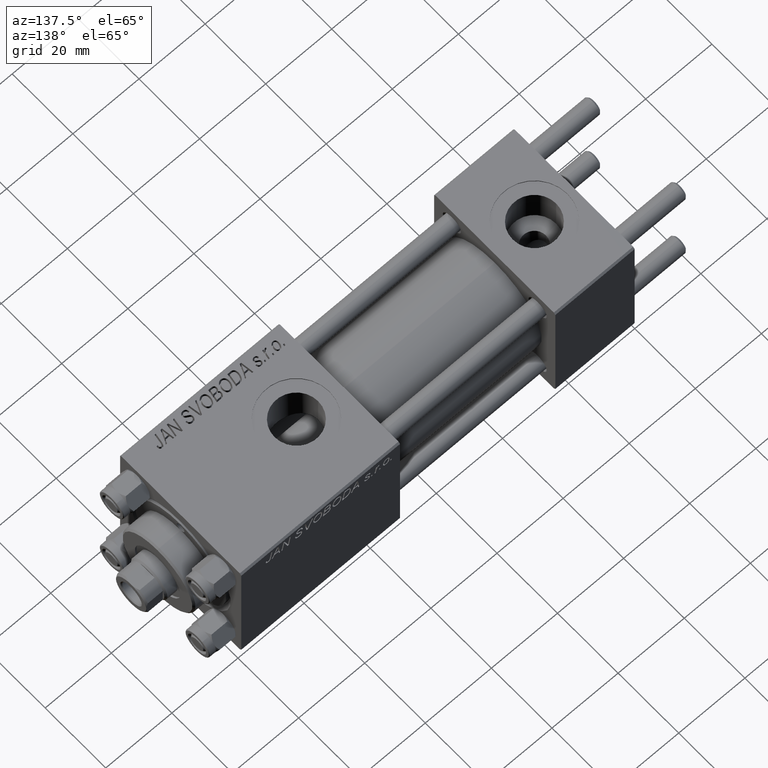
[diagram: clean part render]
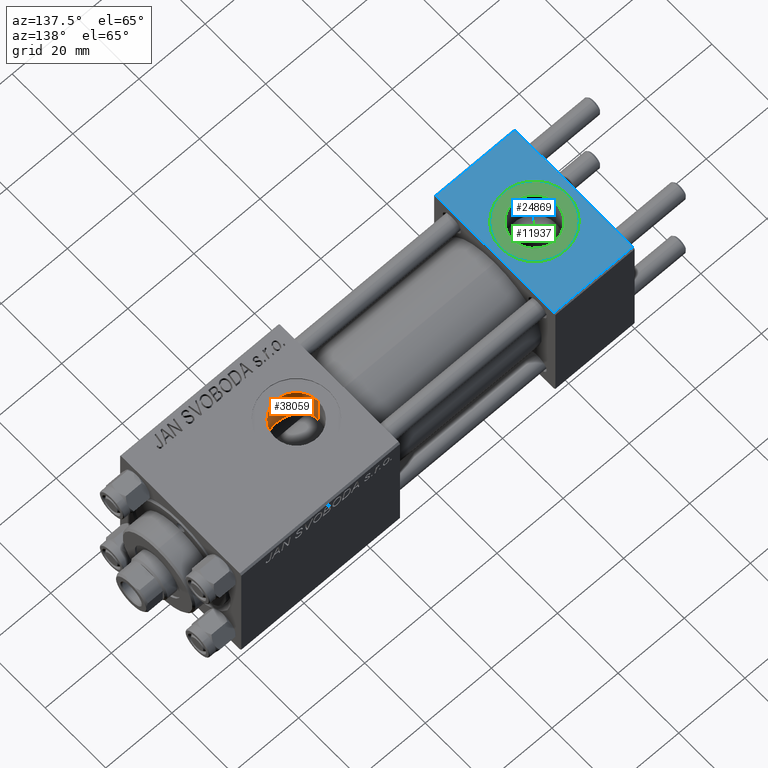
[diagram: same view with three faces highlighted in distinct colors, each labeled with its STEP entity id]
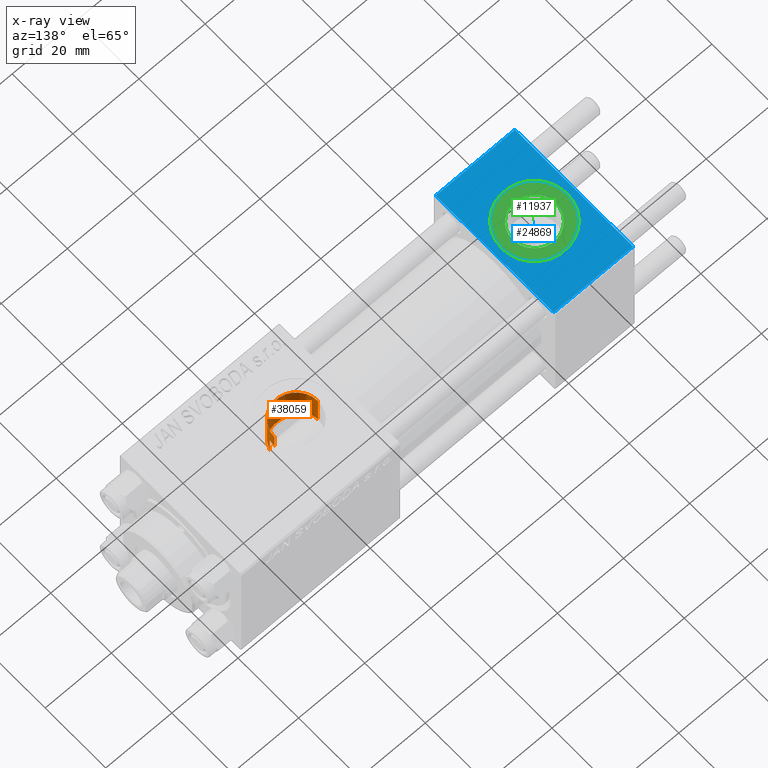
[diagram: x-ray of the same camera — body ghosted, the three highlighted faces saturated]
A machine part, auxiliary view with three faces highlighted in distinct colors.
The next image is the same camera in x-ray (body ghosted, the three faces saturated) — at least one of them is partly hidden behind the body in this view.
Their STEP definitions:

[orange] entity #38059 — the highlighted cylindrical surface (edge-blend (fillet) strip) has radius 6.58 mm, axis along (0, 0, -1).
#166 = CARTESIAN_POINT ( 'NONE',  ( 90.18384735178129574, -2.284382302762963501, 9.743491762341799145 ) ) ;
#417 = CARTESIAN_POINT ( 'NONE',  ( 83.23563096081821300, -6.538530929802691460, 7.566314066596407706 ) ) ;
#2103 = DIRECTION ( 'NONE',  ( 1.000000000000000000, 0.000000000000000000, 0.000000000000000000 ) ) ;
#3079 = CARTESIAN_POINT ( 'NONE',  ( 90.46247493449395449, -1.278752734038846484, 14.94875937294843737 ) ) ;
#3444 = CARTESIAN_POINT ( 'NONE',  ( 84.65744280686338641, -6.559709605006789346, 7.547889352008899877 ) ) ;
#3934 = ORIENTED_EDGE ( 'NONE', *, *, #20905, .T. ) ;
#3945 = CARTESIAN_POINT ( 'NONE',  ( 80.16020215073048405, -5.356874842517142632, 8.448716332623810388 ) ) ;
#4202 = CARTESIAN_POINT ( 'NONE',  ( 81.15150766959031614, -5.943877247083126925, 8.044991576418468071 ) ) ;
#4238 = ORIENTED_EDGE ( 'NONE', *, *, #42522, .F. ) ;
#4458 = CARTESIAN_POINT ( 'NONE',  ( 84.04743762832036680, -6.582974628388996940, 7.527585999843090292 ) ) ;
#5431 = DIRECTION ( 'NONE',  ( 0.000000000000000000, 0.000000000000000000, -1.000000000000000000 ) ) ;
#6328 = ORIENTED_EDGE ( 'NONE', *, *, #49383, .T. ) ;
#6631 = CARTESIAN_POINT ( 'NONE',  ( 90.39284622331669539, -1.591040247564623700, 14.91861279833453757 ) ) ;
#7231 = CARTESIAN_POINT ( 'NONE',  ( 85.64143006621837628, -6.375121249720390182, 7.704616833470068649 ) ) ;
#7484 = CARTESIAN_POINT ( 'NONE',  ( 78.46622740148208663, -3.565203004854784474, 9.344512687240586146 ) ) ;
#7732 = CARTESIAN_POINT ( 'NONE',  ( 79.57031396582577543, -4.880372653833860319, 8.732632965334568453 ) ) ;
#7985 = CARTESIAN_POINT ( 'NONE',  ( 87.26053252520590320, -5.728070196491263921, 8.200680661955367157 ) ) ;
#8203 = VERTEX_POINT ( 'NONE', #25708 ) ;
#8243 = CARTESIAN_POINT ( 'NONE',  ( 79.29730408322323854, -4.618177244596259889, 8.875509752877485781 ) ) ;
#8993 = B_SPLINE_CURVE_WITH_KNOTS ( 'NONE', 3,
 ( #36229, #45276, #25585, #3079, #6631, #17755 ),
 .UNSPECIFIED., .F., .F.,
 ( 4, 2, 4 ),
 ( 0.001923267627926015643, 0.002881828648815649985, 0.003840389669705283893 ),
 .UNSPECIFIED. ) ;
#9360 = VERTEX_POINT ( 'NONE', #39178 ) ;
#9838 = VERTEX_POINT ( 'NONE', #18540 ) ;
#11028 = CARTESIAN_POINT ( 'NONE',  ( 86.92434068310684836, -5.907044672534588869, 8.071096920454994716 ) ) ;
#11281 = CARTESIAN_POINT ( 'NONE',  ( 89.68316260257665817, -3.338928794743214468, 9.433056230293079381 ) ) ;
#11434 = LINE ( 'NONE', #22553, #22635 ) ;
#11778 = CARTESIAN_POINT ( 'NONE',  ( 83.84132420776212768, -6.581215419008478840, 7.529131557805247787 ) ) ;
#12036 = CARTESIAN_POINT ( 'NONE',  ( 77.78468472322818172, -2.169203254887546617, 9.763745855050723677 ) ) ;
#12201 = FACE_OUTER_BOUND ( 'NONE', #23000, .T. ) ;
#14816 = CARTESIAN_POINT ( 'NONE',  ( 77.99714712711040931, -2.723766581249583485, 9.629423614267258458 ) ) ;
#14858 = ORIENTED_EDGE ( 'NONE', *, *, #23069, .F. ) ;
#15825 = CARTESIAN_POINT ( 'NONE',  ( 88.34134544482054707, -4.948221379670047604, 8.691185487698470880 ) ) ;
#16817 = CARTESIAN_POINT ( 'NONE',  ( 77.41999999999846693, 1.225496641077837722E-15, 9.999999999999998224 ) ) ;
#17015 = DIRECTION ( 'NONE',  ( -0.000000000000000000, -0.000000000000000000, -1.000000000000000000 ) ) ;
#17755 = CARTESIAN_POINT ( 'NONE',  ( 90.30000000000001137, -1.899052395280420136, 14.87930105885285670 ) ) ;
#17783 = LINE ( 'NONE', #33206, #46272 ) ;
#18540 = CARTESIAN_POINT ( 'NONE',  ( 90.30000000000001137, -1.899052395280420136, 14.87930105885285670 ) ) ;
#18856 = CARTESIAN_POINT ( 'NONE',  ( 90.30000000000001137, -1.899052395280420136, 9.818024241158690657 ) ) ;
#19352 = CARTESIAN_POINT ( 'NONE',  ( 81.50365122394816808, -6.100731835174567408, 7.925108619061488113 ) ) ;
#19608 = CARTESIAN_POINT ( 'NONE',  ( 87.89699318866286148, -5.305288046703262594, 8.477775428654018341 ) ) ;
#19723 = VERTEX_POINT ( 'NONE', #34567 ) ;
#19860 = CARTESIAN_POINT ( 'NONE',  ( 78.57242859662287060, -3.724876030303978069, 9.281895439158068584 ) ) ;
#20905 = EDGE_CURVE ( 'NONE', #8203, #26718, #38043, .T. ) ;
#22553 = CARTESIAN_POINT ( 'NONE',  ( 90.58000000000154728, -9.289058821376597120E-16, 42.80000000000000426 ) ) ;
#22635 = VECTOR ( 'NONE', #34171, 1000.000000000000000 ) ;
#22898 = CARTESIAN_POINT ( 'NONE',  ( 77.72104259078042787, -1.977670684214428043, 9.804446867313098224 ) ) ;
#23000 = EDGE_LOOP ( 'NONE', ( #43520, #43275, #6328, #14858, #3934, #4238 ) ) ;
#23069 = EDGE_CURVE ( 'NONE', #8203, #9838, #40788, .T. ) ;
#23148 = CARTESIAN_POINT ( 'NONE',  ( 86.39211994537743067, -6.132805105780794186, 7.899218132206713427 ) ) ;
#23408 = CARTESIAN_POINT ( 'NONE',  ( 80.48004077057568395, -5.572564248888139282, 8.306509127488531874 ) ) ;
#23664 = CARTESIAN_POINT ( 'NONE',  ( 77.41999999999848114, -0.4081853129699585803, 10.00000000000000711 ) ) ;
#24102 = EDGE_CURVE ( 'NONE', #9360, #40638, #46612, .T. ) ;
#25585 = CARTESIAN_POINT ( 'NONE',  ( 90.55605924908761040, -0.6456608678150235203, 14.98945420583744870 ) ) ;
#25632 = VECTOR ( 'NONE', #32982, 1000.000000000000000 ) ;
#25708 = CARTESIAN_POINT ( 'NONE',  ( 90.30000000000001137, -1.899052395280420136, 9.818024241158690657 ) ) ;
#26434 = CARTESIAN_POINT ( 'NONE',  ( 88.75695250607545006, -4.561896889324866144, 8.903678834413629062 ) ) ;
#26718 = VERTEX_POINT ( 'NONE', #16817 ) ;
#26935 = CARTESIAN_POINT ( 'NONE',  ( 82.25327158685063011, -6.347078162380216604, 7.727766182684421281 ) ) ;
#27190 = CARTESIAN_POINT ( 'NONE',  ( 78.79875737437667738, -4.034886358906389248, 9.151392050136836431 ) ) ;
#27446 = CARTESIAN_POINT ( 'NONE',  ( 77.61241581301695192, -1.592248641449762747, 9.874366003595781649 ) ) ;
#27605 = DIRECTION ( 'NONE',  ( -1.000000000000000000, 0.000000000000000000, 0.000000000000000000 ) ) ;
#30985 = CARTESIAN_POINT ( 'NONE',  ( 77.45763783829498550, -0.8084208477571691587, 9.975121118623741623 ) ) ;
#31240 = CARTESIAN_POINT ( 'NONE',  ( 89.01171256368644435, -4.281038711601321545, 9.043476487246550732 ) ) ;
#31290 = EDGE_CURVE ( 'NONE', #9360, #19723, #11434, .T. ) ;
#31660 = CYLINDRICAL_SURFACE ( 'NONE', #45307, 6.580000000001542837 ) ;
#32245 = CARTESIAN_POINT ( 'NONE',  ( 90.30000000000001137, -1.899052395280420136, 42.80000000000000426 ) ) ;
#32982 = DIRECTION ( 'NONE',  ( -0.000000000000000000, -0.000000000000000000, 1.000000000000000000 ) ) ;
#33206 = CARTESIAN_POINT ( 'NONE',  ( 77.41999999999846693, -1.734723475976806897E-15, 42.80000000000000426 ) ) ;
#34171 = DIRECTION ( 'NONE',  ( 0.000000000000000000, 0.000000000000000000, -1.000000000000000000 ) ) ;
#34567 = CARTESIAN_POINT ( 'NONE',  ( 90.58000000000154728, 1.836897619300433381E-15, 15.00000000000000000 ) ) ;
#34776 = CARTESIAN_POINT ( 'NONE',  ( 87.74050804270864035, -5.416766998257490862, 8.406790300727948306 ) ) ;
#35028 = CARTESIAN_POINT ( 'NONE',  ( 89.47667727346387778, -3.667500690329295931, 9.309199649381490360 ) ) ;
#35294 = CARTESIAN_POINT ( 'NONE',  ( 84.00000000000000000, -1.734723475976806897E-15, 19.80000000000000071 ) ) ;
#36178 = DIRECTION ( 'NONE',  ( 0.000000000000000000, 0.000000000000000000, -1.000000000000000000 ) ) ;
#36229 = CARTESIAN_POINT ( 'NONE',  ( 90.58000000000154728, 1.836897619300433381E-15, 15.00000000000000000 ) ) ;
#36908 = CARTESIAN_POINT ( 'NONE',  ( 77.41999999999846693, -1.734723475976806897E-15, 19.80000000000000071 ) ) ;
#38043 = B_SPLINE_CURVE_WITH_KNOTS ( 'NONE', 3,
 ( #18856, #166, #49652, #11281, #35028, #31240, #26434, #15825, #42582, #19608, #34776, #7985, #11028, #23148, #38811, #45629, #7231, #39061, #3444, #4458, #11778, #38060, #417, #49901, #38554, #26935, #38308, #19352, #4202, #23408, #3945, #7732, #8243, #45877, #27190, #19860, #7484, #46632, #14816, #12036, #22898, #27446, #42848, #30985, #23664, #42081 ),
 .UNSPECIFIED., .F., .F.,
 ( 4, 2, 2, 2, 2, 2, 2, 2, 2, 2, 2, 2, 2, 2, 2, 2, 2, 2, 2, 2, 2, 2, 4 ),
 ( 0.000000000000000000, 0.001207791230099372441, 0.002415582460198744882, 0.003623373690298115155, 0.004227269305347786631, 0.004831164920397457672, 0.006038956150496800623, 0.006642851765546489880, 0.007246747380596180003, 0.008454538610695601017, 0.009058434225745329305, 0.009662329840795061062, 0.01026622545584479108, 0.01087012107089451937, 0.01207791230099397942, 0.01328570353109343946, 0.01449349476119290124, 0.01509739037624264514, 0.01570128599129239078, 0.01690907722139185429, 0.01751297283644158778, 0.01811686845149132127, 0.01932465968159079173 ),
 .UNSPECIFIED. ) ;
#38059 = ADVANCED_FACE ( 'NONE', ( #12201 ), #31660, .F. ) ;
#38060 = CARTESIAN_POINT ( 'NONE',  ( 83.43610688730976221, -6.558932760434257325, 7.548550817887899278 ) ) ;
#38308 = CARTESIAN_POINT ( 'NONE',  ( 82.06128195139868353, -6.290973204691355569, 7.773687993804112573 ) ) ;
#38554 = CARTESIAN_POINT ( 'NONE',  ( 82.64228046384747017, -6.441510615516904181, 7.649229527461429257 ) ) ;
#38811 = CARTESIAN_POINT ( 'NONE',  ( 86.21002104074251804, -6.200884946022790167, 7.845702732414576275 ) ) ;
#39061 = CARTESIAN_POINT ( 'NONE',  ( 85.05563542025694801, -6.507095227759212008, 7.594134426896898660 ) ) ;
#39178 = CARTESIAN_POINT ( 'NONE',  ( 90.58000000000154728, -9.289058821376599092E-16, 19.80000000000000071 ) ) ;
#40638 = VERTEX_POINT ( 'NONE', #36908 ) ;
#40788 = LINE ( 'NONE', #32245, #25632 ) ;
#42081 = CARTESIAN_POINT ( 'NONE',  ( 77.41999999999846693, 1.225496641077837722E-15, 9.999999999999998224 ) ) ;
#42522 = EDGE_CURVE ( 'NONE', #40638, #26718, #17783, .T. ) ;
#42582 = CARTESIAN_POINT ( 'NONE',  ( 88.19718467613775204, -5.071121963172631197, 8.619888602053425330 ) ) ;
#42848 = CARTESIAN_POINT ( 'NONE',  ( 77.56705469300284506, -1.397686090543303283, 9.903818455115036556 ) ) ;
#43275 = ORIENTED_EDGE ( 'NONE', *, *, #31290, .T. ) ;
#43408 = AXIS2_PLACEMENT_3D ( 'NONE', #35294, #17015, #2103 ) ;
#43501 = CARTESIAN_POINT ( 'NONE',  ( 84.00000000000000000, -1.734723475976806897E-15, 42.80000000000000426 ) ) ;
#43520 = ORIENTED_EDGE ( 'NONE', *, *, #24102, .F. ) ;
#45276 = CARTESIAN_POINT ( 'NONE',  ( 90.58000000000156149, -0.3230844264541308797, 14.99999999999999822 ) ) ;
#45307 = AXIS2_PLACEMENT_3D ( 'NONE', #43501, #36178, #27605 ) ;
#45629 = CARTESIAN_POINT ( 'NONE',  ( 85.83530013697877337, -6.321933289868085559, 7.748495657718812879 ) ) ;
#45877 = CARTESIAN_POINT ( 'NONE',  ( 78.91948560029506154, -4.185857250486422210, 9.083179932574980242 ) ) ;
#46272 = VECTOR ( 'NONE', #5431, 1000.000000000000000 ) ;
#46612 = CIRCLE ( 'NONE', #43408, 6.580000000001542837 ) ;
#46632 = CARTESIAN_POINT ( 'NONE',  ( 78.16834223545102134, -3.071777053897142729, 9.522948337697433985 ) ) ;
#49383 = EDGE_CURVE ( 'NONE', #19723, #9838, #8993, .T. ) ;
#49652 = CARTESIAN_POINT ( 'NONE',  ( 90.03601729897108896, -2.648259396322893089, 9.649752199410302822 ) ) ;
#49901 = CARTESIAN_POINT ( 'NONE',  ( 82.83871781191031403, -6.479820246555592966, 7.616654439233103702 ) ) ;

[blue] entity #24869 — the highlighted planar face has unit normal (0, 0, -1).
#102 = VERTEX_POINT ( 'NONE', #11295 ) ;
#2936 = ORIENTED_EDGE ( 'NONE', *, *, #39531, .T. ) ;
#3386 = DIRECTION ( 'NONE',  ( 1.000000000000000000, 0.000000000000000000, 0.000000000000000000 ) ) ;
#3814 = DIRECTION ( 'NONE',  ( 1.000000000000000000, 0.000000000000000000, 0.000000000000000000 ) ) ;
#4383 = FACE_BOUND ( 'NONE', #19842, .T. ) ;
#6385 = CARTESIAN_POINT ( 'NONE',  ( 0.000000000000000000, 20.00000000000000000, 20.00000000000000000 ) ) ;
#6876 = CARTESIAN_POINT ( 'NONE',  ( 24.00000000000000000, 20.00000000000000000, 20.00000000000000000 ) ) ;
#7028 = VERTEX_POINT ( 'NONE', #48490 ) ;
#8903 = VECTOR ( 'NONE', #13434, 1000.000000000000000 ) ;
#9166 = ORIENTED_EDGE ( 'NONE', *, *, #30444, .F. ) ;
#9322 = EDGE_CURVE ( 'NONE', #7028, #23299, #14299, .T. ) ;
#9773 = VERTEX_POINT ( 'NONE', #25204 ) ;
#9948 = EDGE_CURVE ( 'NONE', #23299, #7028, #33699, .T. ) ;
#10700 = VERTEX_POINT ( 'NONE', #20426 ) ;
#11170 = DIRECTION ( 'NONE',  ( 0.000000000000000000, -1.000000000000000000, -2.602085213965210149E-16 ) ) ;
#11295 = CARTESIAN_POINT ( 'NONE',  ( 0.000000000000000000, -19.49999999999999289, 19.99999999999998934 ) ) ;
#11469 = CARTESIAN_POINT ( 'NONE',  ( 22.00000000000000000, 1.540743955509788682E-30, 19.99999999999999645 ) ) ;
#11797 = CARTESIAN_POINT ( 'NONE',  ( 24.00000000000000000, -19.49999999999999289, 19.99999999999998934 ) ) ;
#13434 = DIRECTION ( 'NONE',  ( -1.000000000000000000, 0.000000000000000000, 0.000000000000000000 ) ) ;
#14299 = CIRCLE ( 'NONE', #31269, 9.999999999999998224 ) ;
#17541 = EDGE_LOOP ( 'NONE', ( #2936, #38862, #9166, #37295 ) ) ;
#18784 = CARTESIAN_POINT ( 'NONE',  ( 24.00000000000000000, 20.00000000000000000, 20.00000000000000000 ) ) ;
#19157 = AXIS2_PLACEMENT_3D ( 'NONE', #42780, #46824, #3386 ) ;
#19419 = VECTOR ( 'NONE', #11170, 1000.000000000000000 ) ;
#19786 = FACE_OUTER_BOUND ( 'NONE', #17541, .T. ) ;
#19842 = EDGE_LOOP ( 'NONE', ( #41892, #20893 ) ) ;
#20426 = CARTESIAN_POINT ( 'NONE',  ( 24.00000000000000000, -19.49999999999999289, 19.99999999999998934 ) ) ;
#20893 = ORIENTED_EDGE ( 'NONE', *, *, #9322, .F. ) ;
#22827 = DIRECTION ( 'NONE',  ( 0.000000000000000000, 2.602085213965210149E-16, -1.000000000000000000 ) ) ;
#23299 = VERTEX_POINT ( 'NONE', #11469 ) ;
#24869 = ADVANCED_FACE ( 'NONE', ( #4383, #19786 ), #35210, .F. ) ;
#25204 = CARTESIAN_POINT ( 'NONE',  ( 24.00000000000000000, 19.50000000000000000, 20.00000000000000000 ) ) ;
#30343 = CARTESIAN_POINT ( 'NONE',  ( 12.00000000000000000, 1.540743955509788682E-30, 19.99999999999999645 ) ) ;
#30444 = EDGE_CURVE ( 'NONE', #9773, #10700, #45520, .T. ) ;
#31004 = LINE ( 'NONE', #11797, #47309 ) ;
#31011 = CARTESIAN_POINT ( 'NONE',  ( 0.000000000000000000, 19.50000000000000000, 20.00000000000000000 ) ) ;
#31269 = AXIS2_PLACEMENT_3D ( 'NONE', #30343, #38424, #3814 ) ;
#32495 = EDGE_CURVE ( 'NONE', #9773, #45492, #48034, .T. ) ;
#33699 = CIRCLE ( 'NONE', #19157, 9.999999999999998224 ) ;
#35210 = PLANE ( 'NONE',  #36993 ) ;
#35303 = DIRECTION ( 'NONE',  ( 1.000000000000000000, 0.000000000000000000, 0.000000000000000000 ) ) ;
#36993 = AXIS2_PLACEMENT_3D ( 'NONE', #18784, #22827, #38233 ) ;
#37295 = ORIENTED_EDGE ( 'NONE', *, *, #32495, .T. ) ;
#38233 = DIRECTION ( 'NONE',  ( 0.000000000000000000, 1.000000000000000000, 2.602085213965210149E-16 ) ) ;
#38424 = DIRECTION ( 'NONE',  ( 0.000000000000000000, 0.000000000000000000, 1.000000000000000000 ) ) ;
#38862 = ORIENTED_EDGE ( 'NONE', *, *, #49881, .T. ) ;
#39531 = EDGE_CURVE ( 'NONE', #45492, #102, #40989, .T. ) ;
#40989 = LINE ( 'NONE', #6385, #46208 ) ;
#41892 = ORIENTED_EDGE ( 'NONE', *, *, #9948, .F. ) ;
#42780 = CARTESIAN_POINT ( 'NONE',  ( 12.00000000000000000, 1.540743955509788682E-30, 19.99999999999999645 ) ) ;
#44299 = DIRECTION ( 'NONE',  ( 0.000000000000000000, -1.000000000000000000, -2.602085213965210149E-16 ) ) ;
#45492 = VERTEX_POINT ( 'NONE', #31011 ) ;
#45520 = LINE ( 'NONE', #6876, #19419 ) ;
#46208 = VECTOR ( 'NONE', #44299, 1000.000000000000000 ) ;
#46824 = DIRECTION ( 'NONE',  ( 0.000000000000000000, 0.000000000000000000, 1.000000000000000000 ) ) ;
#47309 = VECTOR ( 'NONE', #35303, 1000.000000000000000 ) ;
#48034 = LINE ( 'NONE', #48761, #8903 ) ;
#48490 = CARTESIAN_POINT ( 'NONE',  ( 2.000000000000003553, 1.224646799147354440E-15, 19.99999999999999645 ) ) ;
#48761 = CARTESIAN_POINT ( 'NONE',  ( 0.000000000000000000, 19.50000000000000000, 20.00000000000000000 ) ) ;
#49881 = EDGE_CURVE ( 'NONE', #102, #10700, #31004, .T. ) ;

[green] entity #11937 — the highlighted planar face has unit normal (0, 0, 1).
#1109 = VERTEX_POINT ( 'NONE', #23500 ) ;
#1434 = DIRECTION ( 'NONE',  ( 0.000000000000000000, 0.000000000000000000, 1.000000000000000000 ) ) ;
#4194 = ORIENTED_EDGE ( 'NONE', *, *, #9697, .F. ) ;
#4908 = CIRCLE ( 'NONE', #14552, 9.999999999999998224 ) ;
#5610 = EDGE_CURVE ( 'NONE', #28234, #1109, #21447, .T. ) ;
#6730 = ORIENTED_EDGE ( 'NONE', *, *, #34300, .T. ) ;
#7094 = DIRECTION ( 'NONE',  ( 1.000000000000000000, 0.000000000000000000, 0.000000000000000000 ) ) ;
#7368 = CARTESIAN_POINT ( 'NONE',  ( 5.420000000000000817, 8.058175938389596335E-16, 19.79999999999999716 ) ) ;
#7415 = ORIENTED_EDGE ( 'NONE', *, *, #5610, .T. ) ;
#7559 = DIRECTION ( 'NONE',  ( 0.000000000000000000, 0.000000000000000000, 1.000000000000000000 ) ) ;
#7951 = AXIS2_PLACEMENT_3D ( 'NONE', #47437, #12594, #46943 ) ;
#8802 = DIRECTION ( 'NONE',  ( 0.000000000000000000, 0.000000000000000000, 1.000000000000000000 ) ) ;
#9013 = AXIS2_PLACEMENT_3D ( 'NONE', #42160, #7559, #22975 ) ;
#9697 = EDGE_CURVE ( 'NONE', #33657, #24189, #36099, .T. ) ;
#10392 = DIRECTION ( 'NONE',  ( 0.000000000000000000, 0.000000000000000000, 1.000000000000000000 ) ) ;
#11077 = EDGE_LOOP ( 'NONE', ( #4194, #46670 ) ) ;
#11937 = ADVANCED_FACE ( 'NONE', ( #12839, #24211 ), #31806, .T. ) ;
#12594 = DIRECTION ( 'NONE',  ( 0.000000000000000000, 0.000000000000000000, 1.000000000000000000 ) ) ;
#12839 = FACE_BOUND ( 'NONE', #11077, .T. ) ;
#14552 = AXIS2_PLACEMENT_3D ( 'NONE', #24668, #1434, #44856 ) ;
#15826 = AXIS2_PLACEMENT_3D ( 'NONE', #18219, #10392, #7094 ) ;
#18219 = CARTESIAN_POINT ( 'NONE',  ( 12.00000000000000000, 1.540743955509788682E-30, 19.79999999999999716 ) ) ;
#21447 = CIRCLE ( 'NONE', #15826, 9.999999999999998224 ) ;
#22975 = DIRECTION ( 'NONE',  ( 1.000000000000000000, 0.000000000000000000, 0.000000000000000000 ) ) ;
#23500 = CARTESIAN_POINT ( 'NONE',  ( 22.00000000000000000, 1.540743955509788682E-30, 19.79999999999999716 ) ) ;
#24189 = VERTEX_POINT ( 'NONE', #7368 ) ;
#24211 = FACE_OUTER_BOUND ( 'NONE', #40214, .T. ) ;
#24458 = CARTESIAN_POINT ( 'NONE',  ( 12.00000000000000000, 1.540743955509788682E-30, 19.79999999999999716 ) ) ;
#24668 = CARTESIAN_POINT ( 'NONE',  ( 12.00000000000000000, 1.540743955509788682E-30, 19.79999999999999716 ) ) ;
#28234 = VERTEX_POINT ( 'NONE', #37156 ) ;
#31609 = CIRCLE ( 'NONE', #9013, 6.579999999999999183 ) ;
#31806 = PLANE ( 'NONE',  #7951 ) ;
#33657 = VERTEX_POINT ( 'NONE', #44548 ) ;
#34300 = EDGE_CURVE ( 'NONE', #1109, #28234, #4908, .T. ) ;
#36099 = CIRCLE ( 'NONE', #48197, 6.579999999999999183 ) ;
#36434 = EDGE_CURVE ( 'NONE', #24189, #33657, #31609, .T. ) ;
#37156 = CARTESIAN_POINT ( 'NONE',  ( 2.000000000000003553, 1.224646799147354440E-15, 19.79999999999999716 ) ) ;
#40214 = EDGE_LOOP ( 'NONE', ( #6730, #7415 ) ) ;
#42160 = CARTESIAN_POINT ( 'NONE',  ( 12.00000000000000000, 1.540743955509788682E-30, 19.79999999999999716 ) ) ;
#44548 = CARTESIAN_POINT ( 'NONE',  ( 18.57999999999999829, 1.540743955509788682E-30, 19.79999999999999716 ) ) ;
#44856 = DIRECTION ( 'NONE',  ( 1.000000000000000000, 0.000000000000000000, 0.000000000000000000 ) ) ;
#46670 = ORIENTED_EDGE ( 'NONE', *, *, #36434, .F. ) ;
#46694 = DIRECTION ( 'NONE',  ( 1.000000000000000000, 0.000000000000000000, 0.000000000000000000 ) ) ;
#46943 = DIRECTION ( 'NONE',  ( 1.000000000000000000, 0.000000000000000000, -0.000000000000000000 ) ) ;
#47437 = CARTESIAN_POINT ( 'NONE',  ( 12.00000000000000000, 1.540743955509788682E-30, 19.79999999999999716 ) ) ;
#48197 = AXIS2_PLACEMENT_3D ( 'NONE', #24458, #8802, #46694 ) ;